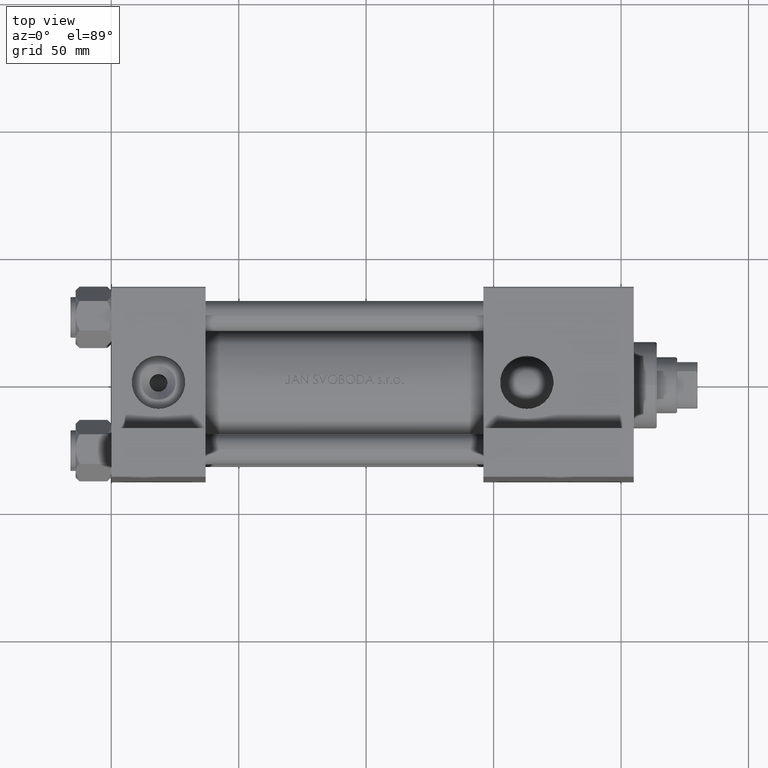
[diagram: clean part render]
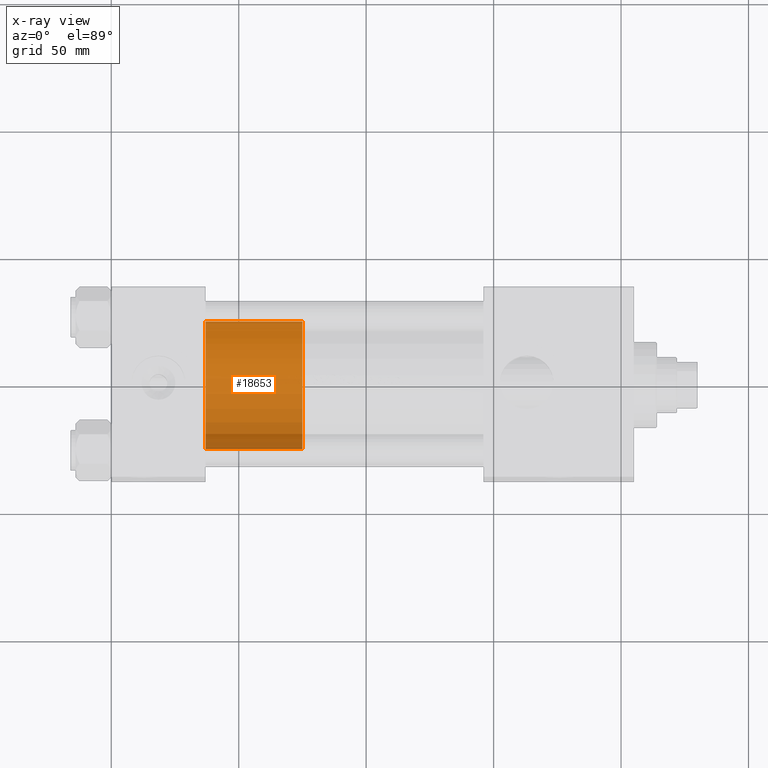
[diagram: x-ray — body ghosted, one internal face saturated and labeled with its STEP entity id]
A machine part, top view, then the same camera in x-ray: the body is ghosted and one INTERNAL B-rep face — a face not visible from any outside direction — is saturated and labeled: STEP entity #18653.
In plain terms, the highlighted cylindrical surface (partial cylindrical patch) has radius 25 mm, axis along (-1, 0, 0).
Its self-contained STEP definition (entity closure, byte-faithful):
#2972 = ORIENTED_EDGE ( 'NONE', *, *, #44923, .F. ) ;
#5224 = CARTESIAN_POINT ( 'NONE',  ( -25.00000000000000000, 0.000000000000000000, 38.00000000000000000 ) ) ;
#5450 = VECTOR ( 'NONE', #49236, 1000.000000000000000 ) ;
#7607 = AXIS2_PLACEMENT_3D ( 'NONE', #37872, #29902, #11232 ) ;
#11003 = EDGE_CURVE ( 'NONE', #28991, #43342, #24995, .T. ) ;
#11232 = DIRECTION ( 'NONE',  ( 1.000000000000000000, 0.000000000000000000, 0.000000000000000000 ) ) ;
#11407 = EDGE_CURVE ( 'NONE', #25088, #42767, #30814, .T. ) ;
#11912 = ORIENTED_EDGE ( 'NONE', *, *, #11003, .F. ) ;
#12937 = DIRECTION ( 'NONE',  ( -0.000000000000000000, -0.000000000000000000, -1.000000000000000000 ) ) ;
#16925 = ORIENTED_EDGE ( 'NONE', *, *, #35642, .T. ) ;
#17194 = DIRECTION ( 'NONE',  ( 0.000000000000000000, 0.000000000000000000, 1.000000000000000000 ) ) ;
#18626 = CARTESIAN_POINT ( 'NONE',  ( 25.00000000000000000, 3.061616997868383043E-15, 38.00000000000000000 ) ) ;
#18653 = ADVANCED_FACE ( 'NONE', ( #39077 ), #46795, .T. ) ;
#20434 = DIRECTION ( 'NONE',  ( 1.000000000000000000, 0.000000000000000000, 0.000000000000000000 ) ) ;
#20730 = AXIS2_PLACEMENT_3D ( 'NONE', #34860, #12937, #23910 ) ;
#20853 = CARTESIAN_POINT ( 'NONE',  ( -25.00000000000000000, 0.000000000000000000, 0.000000000000000000 ) ) ;
#21761 = DIRECTION ( 'NONE',  ( -0.000000000000000000, -0.000000000000000000, -1.000000000000000000 ) ) ;
#22978 = VECTOR ( 'NONE', #21761, 1000.000000000000000 ) ;
#23910 = DIRECTION ( 'NONE',  ( -1.000000000000000000, 0.000000000000000000, 0.000000000000000000 ) ) ;
#24995 = LINE ( 'NONE', #36187, #22978 ) ;
#25088 = VERTEX_POINT ( 'NONE', #37157 ) ;
#25850 = EDGE_LOOP ( 'NONE', ( #2972, #33108, #16925, #11912 ) ) ;
#28310 = CIRCLE ( 'NONE', #7607, 25.00000000000000000 ) ;
#28991 = VERTEX_POINT ( 'NONE', #5224 ) ;
#29902 = DIRECTION ( 'NONE',  ( 0.000000000000000000, 0.000000000000000000, 1.000000000000000000 ) ) ;
#30814 = LINE ( 'NONE', #18626, #5450 ) ;
#32719 = CARTESIAN_POINT ( 'NONE',  ( 25.00000000000000000, 3.061616997868383043E-15, 0.000000000000000000 ) ) ;
#33108 = ORIENTED_EDGE ( 'NONE', *, *, #11407, .T. ) ;
#34860 = CARTESIAN_POINT ( 'NONE',  ( 0.000000000000000000, 0.000000000000000000, 38.00000000000000000 ) ) ;
#35642 = EDGE_CURVE ( 'NONE', #42767, #43342, #43237, .T. ) ;
#36187 = CARTESIAN_POINT ( 'NONE',  ( -25.00000000000000000, 0.000000000000000000, 38.00000000000000000 ) ) ;
#37157 = CARTESIAN_POINT ( 'NONE',  ( 25.00000000000000000, 3.061616997868383043E-15, 38.00000000000000000 ) ) ;
#37872 = CARTESIAN_POINT ( 'NONE',  ( 0.000000000000000000, 0.000000000000000000, 38.00000000000000000 ) ) ;
#39077 = FACE_OUTER_BOUND ( 'NONE', #25850, .T. ) ;
#39595 = CARTESIAN_POINT ( 'NONE',  ( 0.000000000000000000, 0.000000000000000000, 0.000000000000000000 ) ) ;
#42767 = VERTEX_POINT ( 'NONE', #32719 ) ;
#43237 = CIRCLE ( 'NONE', #46435, 25.00000000000000000 ) ;
#43342 = VERTEX_POINT ( 'NONE', #20853 ) ;
#44923 = EDGE_CURVE ( 'NONE', #25088, #28991, #28310, .T. ) ;
#46435 = AXIS2_PLACEMENT_3D ( 'NONE', #39595, #17194, #20434 ) ;
#46795 = CYLINDRICAL_SURFACE ( 'NONE', #20730, 25.00000000000000000 ) ;
#49236 = DIRECTION ( 'NONE',  ( -0.000000000000000000, -0.000000000000000000, -1.000000000000000000 ) ) ;